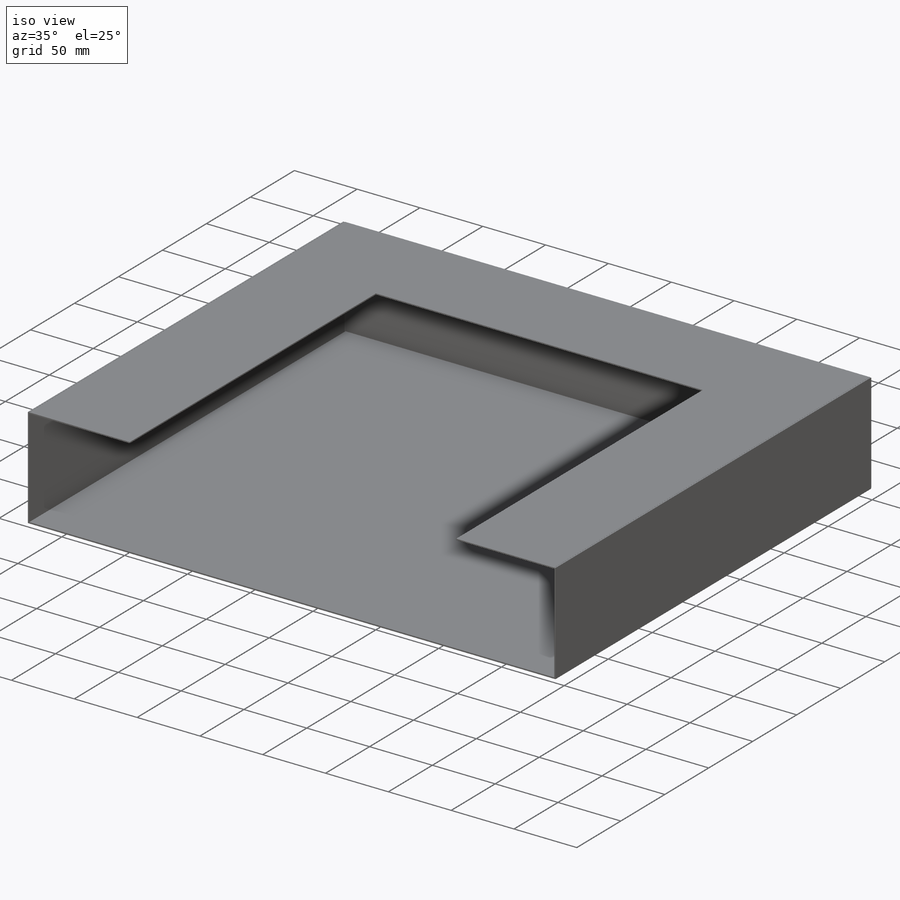
[diagram: iso view]
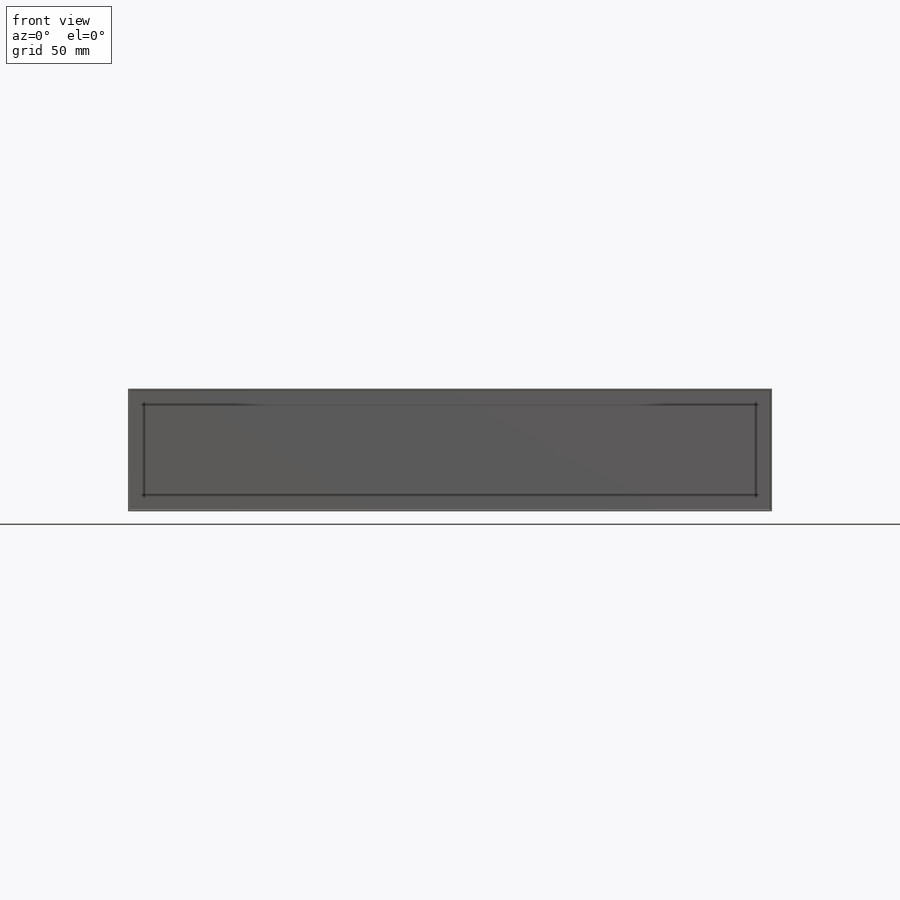
[diagram: front view]
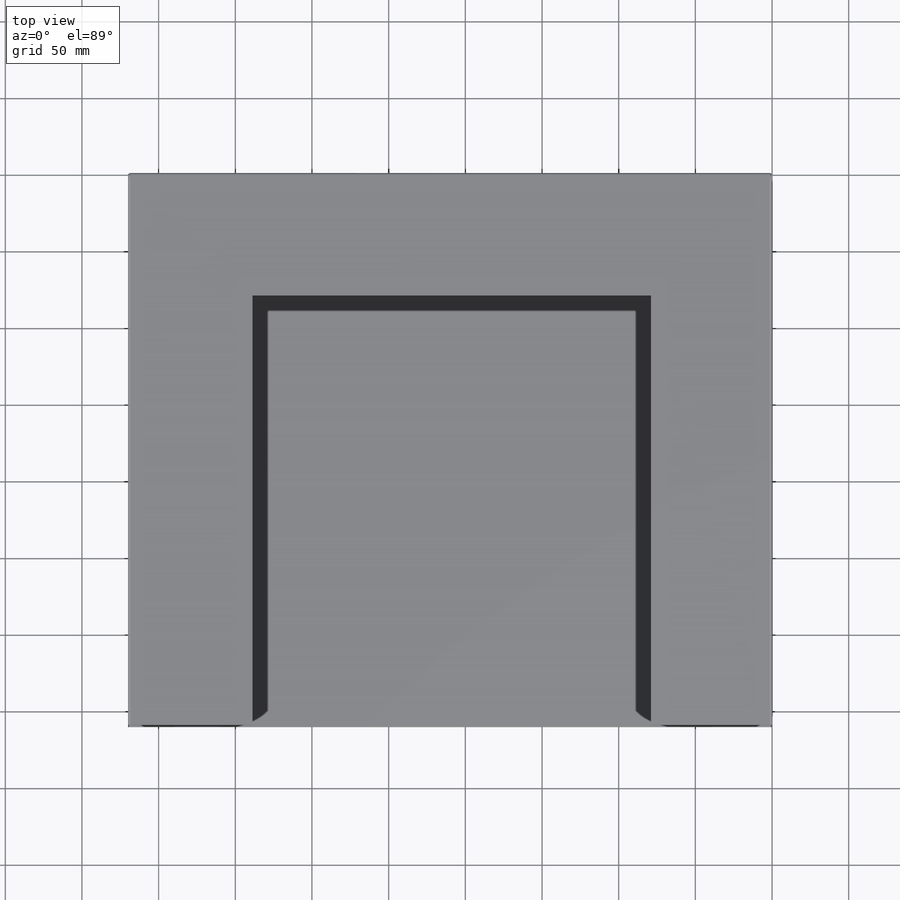
[diagram: top view]
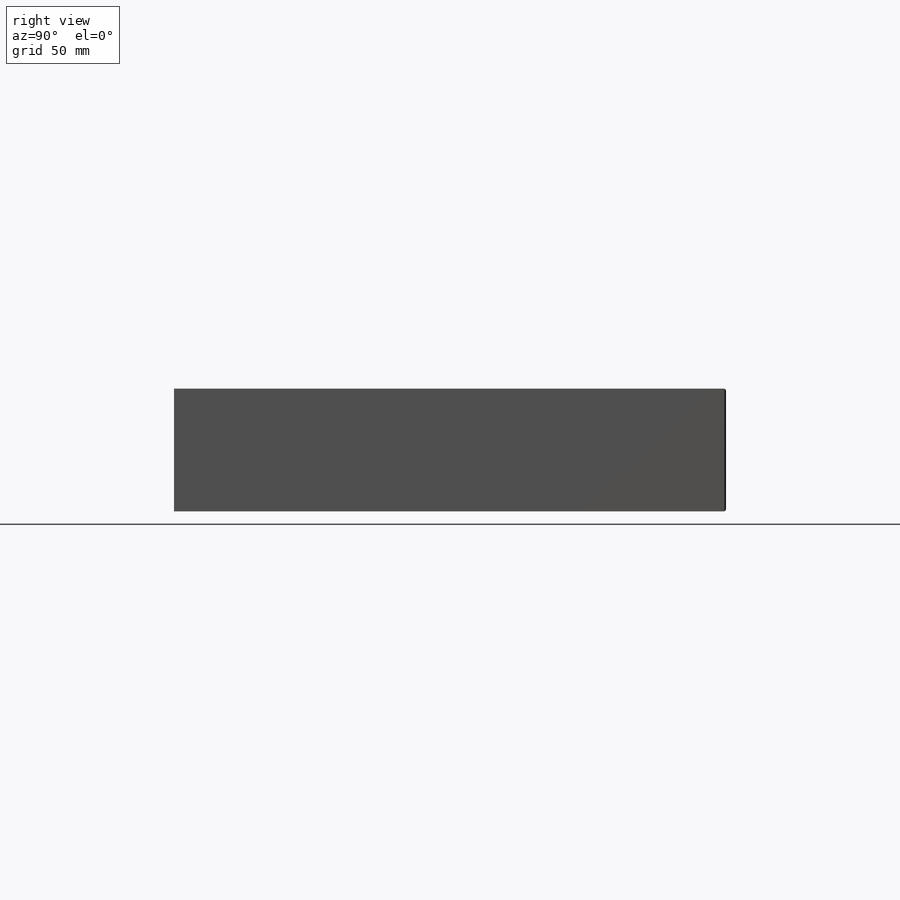
[diagram: right view]
SOLIDWORKS PART (.sldprt)
format: sldprt  version: not decoded by parser v0  size: 318,976 bytes
history: native  units: mm
features: sketch x6, cut_extrude x2, material x1, extrude x1, shell x1, sheet_metal_op x1 + 4 further entries (+16 scaffold rows collapsed; 1 parser-record rows omitted)
feature tree (33):
  scaffold x16  (default folders/planes/origin — collapsed)
  material  "Material <not specified>"
  sketch  "Sketch1"  dims[c1.D1=~81.501942mm c2.D1=420.0mm c2.D2=360.0mm]
  extrude  "Boss-Extrude1"  Depth=80mm
  shell  "Shell2"  Thickness=1mm
  sheet_metal_op  "Sheet-Metal1"  Thickness=1mm
  sketch  "Sharp-Sketch1"  dims[c1.SharpBend1=0.0 c1.D1=0.0mm c1.D4=90.0deg c1.D5=4.0 c1.D8=0.0mm c1.D9=0.0mm c1.SharpBend2=0.0 c2.D1=0.0mm c2.D4=90.0deg c2.D5=3.0 c2.D8=0.0mm c2.D9=0.0mm c2.SharpBend3=0.0 c3.D1=0.0mm c3.D4=90.0deg c3.D5=2.0 c3.D8=0.0mm c3.D9=0.0mm c4.D1=0.0mm]
  sketch  "Flat-Sketch1"  dims[D1=0.0mm]
  sketch  "Sketch12"  dims[D1=280.0mm D2=260.0mm D3=80.0mm]
  cut_extrude  "Cut-Extrude3"  [1 undecoded]
  "Flat-Pattern1"
  sketch  "Bend-Lines1"
  "Flatten-<SharpBend2>1"
  "Flatten-<SharpBend3>1"
  "Flatten-<SharpBend4>1"
  parser-record x1  (decoder bookkeeping rows leaked as tree rows — omitted from the tree; the rows remain in map.json)
  sketch  "Sketch10"  dims[D1=280.0mm D2=260.0mm D3=80.0mm]
  cut_extrude  "Cut-Extrude2"  [1 undecoded]
decode coverage: 8 of 11 modeling features carry decoded parameters; 4 rows unclassified (native names shown)
note: ~ marks probable driven/reference dimensions
note: 2 parameter values undecoded
note: suppression state not decoded; provenance and decode notes live in map.json
